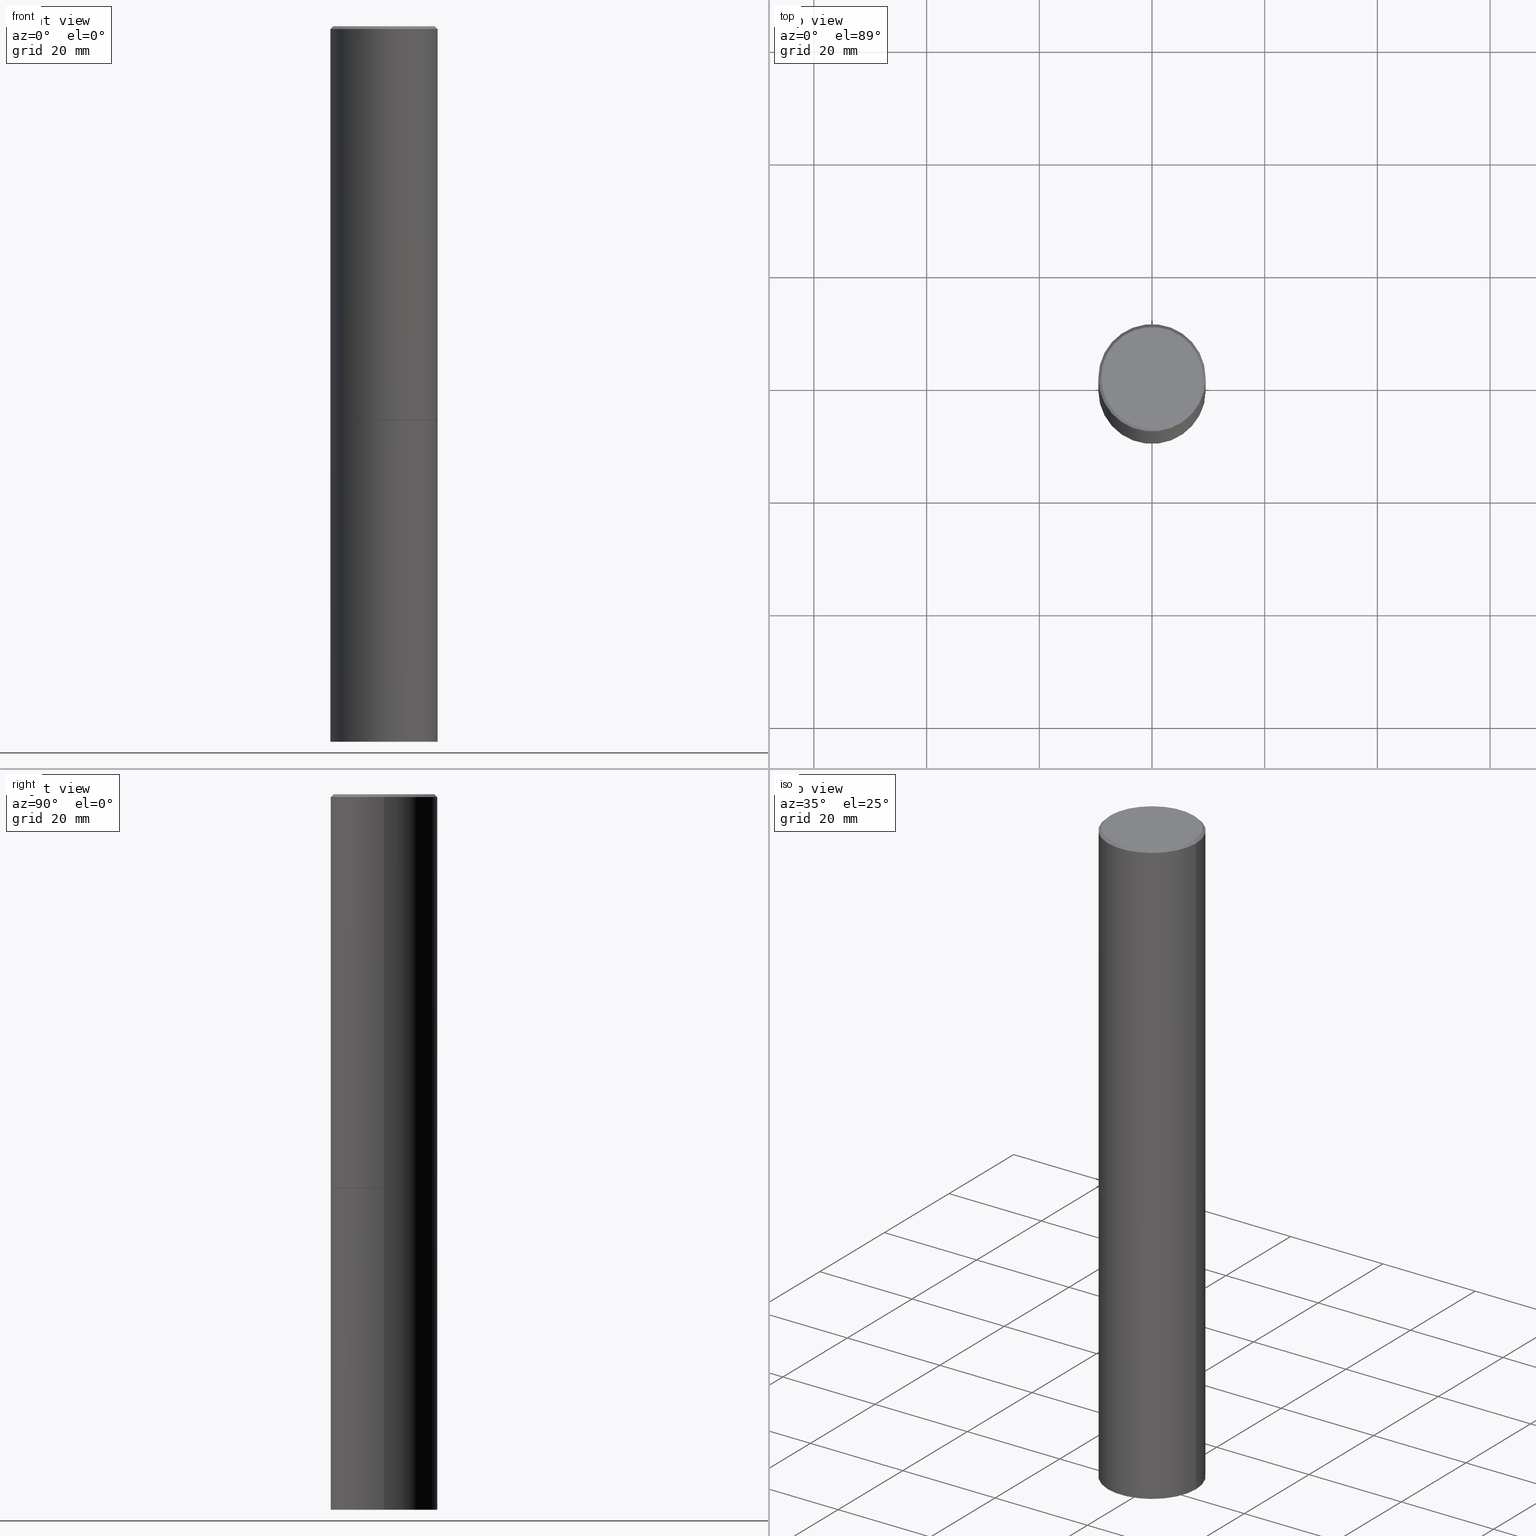
[diagram: canonical four-view strip — front | top / right | iso, engineering-drawing reading convention]
A machine part, canonical four-view strip (front | top / right | iso — engineering-drawing reading convention). The complete STEP part file that produces these views, byte-faithful:
ISO-10303-21;
HEADER;
FILE_DESCRIPTION (( 'STEP AP203' ),
    '1' );
FILE_NAME ('70486.STEP',
    '2024-02-29T03:16:18',
    ( '' ),
    ( '' ),
    'SwSTEP 2.0',
    'SolidWorks 2023',
    '' );
FILE_SCHEMA (( 'CONFIG_CONTROL_DESIGN' ));
ENDSEC;

DATA;
#1 = DATE_AND_TIME ( #61, #44 ) ;
#2 = CARTESIAN_POINT ( 'NONE',  ( 0.000000000000000000, 0.000000000000000000, 0.000000000000000000 ) ) ;
#3 = CARTESIAN_POINT ( 'NONE',  ( -0.3739999999999999991, -6.944143850075875170E-15, -2.750000000000000000 ) ) ;
#4 = DIRECTION ( 'NONE',  ( 1.000000000000000000, -6.982962677686266711E-15, 0.000000000000000000 ) ) ;
#5 = ORIENTED_EDGE ( 'NONE', *, *, #188, .T. ) ;
#6 =( LENGTH_UNIT ( ) NAMED_UNIT ( * ) SI_UNIT ( $, .METRE. ) );
#7 = PRODUCT ( '70486', '70486', '', ( #343 ) ) ;
#8 = ORIENTED_EDGE ( 'NONE', *, *, #188, .F. ) ;
#9 = DIRECTION ( 'NONE',  ( -2.445468806185136597E-29, 3.491481338843145583E-15, 1.000000000000000000 ) ) ;
#10 = DIRECTION ( 'NONE',  ( -2.445468806185136597E-29, 3.491481338843145583E-15, 1.000000000000000000 ) ) ;
#11 = CIRCLE ( 'NONE', #336, 0.3750000000000000555 ) ;
#12 = CYLINDRICAL_SURFACE ( 'NONE', #199, 0.3749999999999998335 ) ;
#13 = CIRCLE ( 'NONE', #210, 0.3750000000000000555 ) ;
#14 = EDGE_CURVE ( 'NONE', #320, #322, #11, .T. ) ;
#15 = ORIENTED_EDGE ( 'NONE', *, *, #326, .F. ) ;
#16 = CARTESIAN_POINT ( 'NONE',  ( 2.618611004132417464E-15, 0.3749999999999903966, -2.750000000000000888 ) ) ;
#17 = ADVANCED_FACE ( 'NONE', ( #145 ), #259, .F. ) ;
#18 = DIRECTION ( 'NONE',  ( -2.445468806185136597E-29, 3.491481338843145583E-15, 1.000000000000000000 ) ) ;
#19 = VECTOR ( 'NONE', #133, 39.37007874015748143 ) ;
#20 = VERTEX_POINT ( 'NONE', #244 ) ;
#21 = APPROVAL_DATE_TIME ( #83, #167 ) ;
#22 = CALENDAR_DATE ( 2024, 28, 2 ) ;
#23 = AXIS2_PLACEMENT_3D ( 'NONE', #137, #112, #222 ) ;
#24 = FACE_OUTER_BOUND ( 'NONE', #92, .T. ) ;
#25 = APPLICATION_PROTOCOL_DEFINITION ( 'international standard', 'config_control_design', 1994, #79 ) ;
#26 = CARTESIAN_POINT ( 'NONE',  ( 0.3749999999999996114, -2.642516375941185268E-15, -0.02000000000000010103 ) ) ;
#27 = CC_DESIGN_PERSON_AND_ORGANIZATION_ASSIGNMENT ( #220, #307, ( #7 ) ) ;
#28 = ORIENTED_EDGE ( 'NONE', *, *, #326, .T. ) ;
#29 = LINE ( 'NONE', #3, #230 ) ;
#30 = PERSON_AND_ORGANIZATION ( #68, #351 ) ;
#31 = CYLINDRICAL_SURFACE ( 'NONE', #319, 0.3750000000000000555 ) ;
#32 = LOCAL_TIME ( 22, 16, 18.00000000000000000, #228 ) ;
#33 = ORIENTED_EDGE ( 'NONE', *, *, #119, .T. ) ;
#34 = CARTESIAN_POINT ( 'NONE',  ( 0.000000000000000000, 0.000000000000000000, 0.000000000000000000 ) ) ;
#35 = EDGE_LOOP ( 'NONE', ( #168, #281 ) ) ;
#36 = PRODUCT_DEFINITION ( 'UNKNOWN', '', #242, #49 ) ;
#37 = DIRECTION ( 'NONE',  ( 1.000000000000000000, -6.982962677686265922E-15, 4.876176775795935793E-29 ) ) ;
#38 = COORDINATED_UNIVERSAL_TIME_OFFSET ( 5, 0, .BEHIND. ) ;
#39 = EDGE_CURVE ( 'NONE', #305, #357, #269, .T. ) ;
#40 = CONICAL_SURFACE ( 'NONE', #262, 0.3749999999999996114, 0.7853981633974453924 ) ;
#41 = ORIENTED_EDGE ( 'NONE', *, *, #255, .T. ) ;
#42 = ADVANCED_FACE ( 'NONE', ( #364 ), #206, .T. ) ;
#43 = EDGE_LOOP ( 'NONE', ( #291, #45 ) ) ;
#44 = LOCAL_TIME ( 22, 16, 18.00000000000000000, #38 ) ;
#45 = ORIENTED_EDGE ( 'NONE', *, *, #48, .F. ) ;
#46 = CALENDAR_DATE ( 2024, 28, 2 ) ;
#47 = PERSON_AND_ORGANIZATION_ROLE ( 'design_supplier' ) ;
#48 = EDGE_CURVE ( 'NONE', #113, #313, #276, .T. ) ;
#49 = DESIGN_CONTEXT ( 'detailed design', #79, 'design' ) ;
#50 = CARTESIAN_POINT ( 'NONE',  ( 0.3739999999999999991, -1.221320172327331386E-14, -2.750000000000000000 ) ) ;
#51 = AXIS2_PLACEMENT_3D ( 'NONE', #263, #10, #108 ) ;
#52 = ADVANCED_FACE ( 'NONE', ( #74 ), #248, .F. ) ;
#53 = ADVANCED_FACE ( 'NONE', ( #290 ), #169, .T. ) ;
#54 = FACE_OUTER_BOUND ( 'NONE', #75, .T. ) ;
#55 = CARTESIAN_POINT ( 'NONE',  ( 2.618611004132472290E-15, 0.3749999999999825695, -5.000000000000000888 ) ) ;
#56 = AXIS2_PLACEMENT_3D ( 'NONE', #308, #140, #62 ) ;
#57 = VERTEX_POINT ( 'NONE', #312 ) ;
#58 = DIRECTION ( 'NONE',  ( 1.000000000000000000, -6.982962677686265922E-15, 4.876176775795935793E-29 ) ) ;
#59 = DIRECTION ( 'NONE',  ( -2.445468806185136597E-29, 3.491481338843145583E-15, 1.000000000000000000 ) ) ;
#60 = ORIENTED_EDGE ( 'NONE', *, *, #184, .F. ) ;
#61 = CALENDAR_DATE ( 2024, 28, 2 ) ;
#62 = DIRECTION ( 'NONE',  ( -1.000000000000000000, 6.982962677686266711E-15, 0.000000000000000000 ) ) ;
#63 = DIRECTION ( 'NONE',  ( 2.445468806185136597E-29, -3.491481338843145583E-15, -1.000000000000000000 ) ) ;
#64 = ORIENTED_EDGE ( 'NONE', *, *, #191, .T. ) ;
#65 = CARTESIAN_POINT ( 'NONE',  ( 0.000000000000000000, 0.000000000000000000, 0.000000000000000000 ) ) ;
#66 = EDGE_LOOP ( 'NONE', ( #5, #28, #99, #310 ) ) ;
#67 = DIRECTION ( 'NONE',  ( -2.445468806185136597E-29, 3.491481338843145583E-15, 1.000000000000000000 ) ) ;
#68 = PERSON ( 'UNSPECIFIED', 'UNSPECIFIED', 'UNSPECIFIED', ('UNSPECIFIED'), ('UNSPECIFIED'), ('UNSPECIFIED') ) ;
#69 = EDGE_CURVE ( 'NONE', #313, #305, #200, .T. ) ;
#70 = DIRECTION ( 'NONE',  ( -1.000000000000000000, 6.982962677686265922E-15, -4.876176775795935793E-29 ) ) ;
#71 = DIRECTION ( 'NONE',  ( 1.000000000000000000, -6.982962677686265133E-15, 0.000000000000000000 ) ) ;
#72 = EDGE_LOOP ( 'NONE', ( #116, #64 ) ) ;
#73 = LOCAL_TIME ( 22, 16, 18.00000000000000000, #333 ) ;
#74 = FACE_OUTER_BOUND ( 'NONE', #43, .T. ) ;
#75 = EDGE_LOOP ( 'NONE', ( #166, #124, #198, #218 ) ) ;
#76 = ADVANCED_BREP_SHAPE_REPRESENTATION ( '70486', ( #296, #183, #136 ), #117 ) ;
#77 = DIRECTION ( 'NONE',  ( 1.000000000000000000, -6.982962677686266711E-15, 0.000000000000000000 ) ) ;
#78 = CARTESIAN_POINT ( 'NONE',  ( 0.3750000000000000555, -2.007601769834807990E-14, -5.000000000000000000 ) ) ;
#79 = APPLICATION_CONTEXT ( 'configuration controlled 3d designs of mechanical parts and assemblies' ) ;
#80 = CIRCLE ( 'NONE', #337, 0.3749999999999996114 ) ;
#81 = ORIENTED_EDGE ( 'NONE', *, *, #361, .T. ) ;
#82 = DIRECTION ( 'NONE',  ( 1.000000000000000000, -6.982962677686266711E-15, 0.000000000000000000 ) ) ;
#83 = DATE_AND_TIME ( #22, #287 ) ;
#84 = DIRECTION ( 'NONE',  ( -2.445468806185136597E-29, 3.491481338843145583E-15, 1.000000000000000000 ) ) ;
#85 = CARTESIAN_POINT ( 'NONE',  ( 6.725039217009124520E-29, -9.601573681818649859E-15, -2.750000000000000000 ) ) ;
#86 = CARTESIAN_POINT ( 'NONE',  ( -0.3750000000000000555, 2.664535259100376091E-15, -1.844600658845589598E-29 ) ) ;
#87 = CARTESIAN_POINT ( 'NONE',  ( 0.3549999999999996492, -2.538996582575037893E-15, 4.268512490117958041E-18 ) ) ;
#88 = DATE_TIME_ROLE ( 'creation_date' ) ;
#89 = EDGE_CURVE ( 'NONE', #357, #20, #359, .T. ) ;
#90 = CIRCLE ( 'NONE', #171, 0.3739999999999999991 ) ;
#91 = DIRECTION ( 'NONE',  ( -2.445468806185136597E-29, 3.491481338843145583E-15, 1.000000000000000000 ) ) ;
#92 = EDGE_LOOP ( 'NONE', ( #170, #202, #81, #258 ) ) ;
#93 = DIRECTION ( 'NONE',  ( -2.445468806185136597E-29, 3.491481338843145583E-15, 1.000000000000000000 ) ) ;
#94 = AXIS2_PLACEMENT_3D ( 'NONE', #34, #59, #162 ) ;
#95 = CARTESIAN_POINT ( 'NONE',  ( -0.3750000000000000555, -1.086495492891681496E-14, -2.750000000000000000 ) ) ;
#96 = VERTEX_POINT ( 'NONE', #87 ) ;
#97 = DIRECTION ( 'NONE',  ( -1.000000000000000000, 6.982962677686265922E-15, -4.876176775795935793E-29 ) ) ;
#98 = ORIENTED_EDGE ( 'NONE', *, *, #211, .F. ) ;
#99 = ORIENTED_EDGE ( 'NONE', *, *, #89, .F. ) ;
#100 = VECTOR ( 'NONE', #229, 39.37007874015748143 ) ;
#101 = ADVANCED_FACE ( 'NONE', ( #192 ), #297, .T. ) ;
#102 = APPROVAL_STATUS ( 'not_yet_approved' ) ;
#103 = APPROVAL_DATE_TIME ( #236, #331 ) ;
#104 = PRODUCT_RELATED_PRODUCT_CATEGORY ( 'detail', '', ( #7 ) ) ;
#105 =( NAMED_UNIT ( * ) SI_UNIT ( $, .STERADIAN. ) SOLID_ANGLE_UNIT ( ) );
#106 = APPROVAL_ROLE ( '' ) ;
#107 = DIRECTION ( 'NONE',  ( 1.000000000000000000, -6.982962677686265133E-15, 0.000000000000000000 ) ) ;
#108 = DIRECTION ( 'NONE',  ( 1.000000000000000000, -6.982962677686265922E-15, 4.876231632511992667E-29 ) ) ;
#109 = LINE ( 'NONE', #86, #100 ) ;
#110 = AXIS2_PLACEMENT_3D ( 'NONE', #147, #91, #174 ) ;
#111 = ADVANCED_FACE ( 'NONE', ( #115 ), #12, .T. ) ;
#112 = DIRECTION ( 'NONE',  ( -2.445468806185136597E-29, 3.491481338843145583E-15, 1.000000000000000000 ) ) ;
#113 = VERTEX_POINT ( 'NONE', #118 ) ;
#114 = ADVANCED_FACE ( 'NONE', ( #347 ), #358, .F. ) ;
#115 = FACE_OUTER_BOUND ( 'NONE', #179, .T. ) ;
#116 = ORIENTED_EDGE ( 'NONE', *, *, #176, .T. ) ;
#117 =( GEOMETRIC_REPRESENTATION_CONTEXT ( 3 ) GLOBAL_UNCERTAINTY_ASSIGNED_CONTEXT ( ( #178 ) ) GLOBAL_UNIT_ASSIGNED_CONTEXT ( ( #247, #138, #105 ) ) REPRESENTATION_CONTEXT ( 'NONE', 'WORKASPACE' ) );
#118 = CARTESIAN_POINT ( 'NONE',  ( -0.3739999999999999991, -6.938845395727654346E-15, -2.750000000000000000 ) ) ;
#119 = EDGE_CURVE ( 'NONE', #96, #357, #289, .T. ) ;
#120 = ORIENTED_EDGE ( 'NONE', *, *, #282, .F. ) ;
#121 = DIRECTION ( 'NONE',  ( 2.438088387897960049E-29, -3.491481338843145188E-15, -1.000000000000000000 ) ) ;
#122 = AXIS2_PLACEMENT_3D ( 'NONE', #272, #159, #356 ) ;
#123 = APPROVAL_PERSON_ORGANIZATION ( #157, #235, #354 ) ;
#124 = ORIENTED_EDGE ( 'NONE', *, *, #225, .T. ) ;
#125 = CARTESIAN_POINT ( 'NONE',  ( 0.3750000000000000555, -1.221669320461215845E-14, -2.749000000000000110 ) ) ;
#126 = PERSON_AND_ORGANIZATION_ROLE ( 'classification_officer' ) ;
#127 = CLOSED_SHELL ( 'NONE', ( #325, #323, #17, #355 ) ) ;
#128 = VECTOR ( 'NONE', #346, 39.37007874015748143 ) ;
#129 = DIRECTION ( 'NONE',  ( 1.000000000000000000, -6.982962677686265133E-15, 0.000000000000000000 ) ) ;
#130 = CC_DESIGN_SECURITY_CLASSIFICATION ( #226, ( #242 ) ) ;
#131 = PERSON_AND_ORGANIZATION ( #68, #351 ) ;
#132 = DIRECTION ( 'NONE',  ( -2.445468806185136597E-29, 3.491481338843145583E-15, 1.000000000000000000 ) ) ;
#133 = DIRECTION ( 'NONE',  ( -2.445468806185136877E-29, 3.491481338843145188E-15, 1.000000000000000000 ) ) ;
#134 = COORDINATED_UNIVERSAL_TIME_OFFSET ( 5, 0, .BEHIND. ) ;
#135 = LINE ( 'NONE', #251, #19 ) ;
#136 = AXIS2_PLACEMENT_3D ( 'NONE', #2, #366, #334 ) ;
#137 = CARTESIAN_POINT ( 'NONE',  ( 4.890937612370298557E-31, -6.982962677686327354E-17, -0.02000000000000010103 ) ) ;
#138 =( NAMED_UNIT ( * ) PLANE_ANGLE_UNIT ( ) SI_UNIT ( $, .RADIAN. ) );
#139 = ORIENTED_EDGE ( 'NONE', *, *, #89, .T. ) ;
#140 = DIRECTION ( 'NONE',  ( 2.445468806185136597E-29, -3.491481338843145583E-15, -1.000000000000000000 ) ) ;
#141 = CC_DESIGN_PERSON_AND_ORGANIZATION_ASSIGNMENT ( #30, #126, ( #226 ) ) ;
#142 = VECTOR ( 'NONE', #175, 39.37007874015748143 ) ;
#143 = DIRECTION ( 'NONE',  ( 1.000000000000000000, -6.982962677686265922E-15, 4.876176775795935793E-29 ) ) ;
#144 = EDGE_LOOP ( 'NONE', ( #98, #284, #227, #160 ) ) ;
#145 = FACE_OUTER_BOUND ( 'NONE', #72, .T. ) ;
#146 = DIRECTION ( 'NONE',  ( -2.445468806185136597E-29, 3.491481338843145583E-15, 1.000000000000000000 ) ) ;
#147 = CARTESIAN_POINT ( 'NONE',  ( -1.043851414335219820E-46, 1.490343170380447200E-32, 4.268512490100411279E-18 ) ) ;
#148 = APPROVAL_PERSON_ORGANIZATION ( #131, #331, #106 ) ;
#149 = DIRECTION ( 'NONE',  ( -2.445468806185136597E-29, 3.491481338843145583E-15, 1.000000000000000000 ) ) ;
#150 = ORIENTED_EDGE ( 'NONE', *, *, #14, .F. ) ;
#151 = VERTEX_POINT ( 'NONE', #341 ) ;
#152 = CARTESIAN_POINT ( 'NONE',  ( 2.478951750578621842E-15, 0.3549999999999996492, -1.237341619044265047E-15 ) ) ;
#153 = VECTOR ( 'NONE', #271, 39.37007874015748143 ) ;
#154 = DIMENSIONAL_EXPONENTS ( 1.000000000000000000, 0.000000000000000000, 0.000000000000000000, 0.000000000000000000, 0.000000000000000000, 0.000000000000000000, 0.000000000000000000 ) ;
#155 = PRODUCT_DEFINITION_SHAPE ( 'NONE', 'NONE',  #36 ) ;
#156 = ADVANCED_FACE ( 'NONE', ( #193 ), #40, .T. ) ;
#157 = PERSON_AND_ORGANIZATION ( #68, #351 ) ;
#158 = AXIS2_PLACEMENT_3D ( 'NONE', #152, #266, #97 ) ;
#159 = DIRECTION ( 'NONE',  ( -2.445468806185136597E-29, 3.491481338843145583E-15, 1.000000000000000000 ) ) ;
#160 = ORIENTED_EDGE ( 'NONE', *, *, #231, .F. ) ;
#161 = ADVANCED_FACE ( 'NONE', ( #240 ), #268, .T. ) ;
#162 = DIRECTION ( 'NONE',  ( 1.000000000000000000, -6.982962677686265922E-15, 4.876176775795935793E-29 ) ) ;
#163 = ORIENTED_EDGE ( 'NONE', *, *, #69, .F. ) ;
#164 = DIRECTION ( 'NONE',  ( 2.438088387897960049E-29, -3.491481338843145188E-15, -1.000000000000000000 ) ) ;
#165 = AXIS2_PLACEMENT_3D ( 'NONE', #335, #344, #194 ) ;
#166 = ORIENTED_EDGE ( 'NONE', *, *, #14, .T. ) ;
#167 = APPROVAL ( #102, 'UNSPECIFIED' ) ;
#168 = ORIENTED_EDGE ( 'NONE', *, *, #282, .T. ) ;
#169 = CYLINDRICAL_SURFACE ( 'NONE', #267, 0.3749999999999998335 ) ;
#170 = ORIENTED_EDGE ( 'NONE', *, *, #225, .F. ) ;
#171 = AXIS2_PLACEMENT_3D ( 'NONE', #260, #18, #129 ) ;
#172 = APPROVAL_PERSON_ORGANIZATION ( #300, #167, #215 ) ;
#173 = APPLICATION_CONTEXT ( 'configuration controlled 3d designs of mechanical parts and assemblies' ) ;
#174 = DIRECTION ( 'NONE',  ( 1.000000000000000000, -6.982962677686265922E-15, 4.876231632511992667E-29 ) ) ;
#175 = DIRECTION ( 'NONE',  ( 0.7071067811866199593, -2.468850131083015945E-15, 0.7071067811864750752 ) ) ;
#176 = EDGE_CURVE ( 'NONE', #303, #278, #13, .T. ) ;
#177 = AXIS2_PLACEMENT_3D ( 'NONE', #16, #121, #70 ) ;
#178 = UNCERTAINTY_MEASURE_WITH_UNIT (LENGTH_MEASURE( 1.000000000000000082E-05 ), #247, 'distance_accuracy_value', 'NONE');
#179 = EDGE_LOOP ( 'NONE', ( #15, #294, #201, #205 ) ) ;
#180 = CC_DESIGN_PERSON_AND_ORGANIZATION_ASSIGNMENT ( #213, #47, ( #242 ) ) ;
#181 = CARTESIAN_POINT ( 'NONE',  ( 0.3750000000000000555, -1.222018468595100145E-14, -2.750000000000000000 ) ) ;
#182 = CIRCLE ( 'NONE', #195, 0.3750000000000000555 ) ;
#183 = MANIFOLD_SOLID_BREP ( 'Body-Move/Copy2[2]', #328 ) ;
#184 = EDGE_CURVE ( 'NONE', #322, #320, #207, .T. ) ;
#185 = CIRCLE ( 'NONE', #237, 0.3750000000000000555 ) ;
#186 = ORIENTED_EDGE ( 'NONE', *, *, #255, .F. ) ;
#187 = CARTESIAN_POINT ( 'NONE',  ( -0.3750000000000000555, -1.086495492891681496E-14, -5.000000000000000000 ) ) ;
#188 = EDGE_CURVE ( 'NONE', #305, #57, #182, .T. ) ;
#189 = LINE ( 'NONE', #332, #153 ) ;
#190 = APPLICATION_PROTOCOL_DEFINITION ( 'international standard', 'config_control_design', 1994, #173 ) ;
#191 = EDGE_CURVE ( 'NONE', #278, #303, #286, .T. ) ;
#192 = FACE_OUTER_BOUND ( 'NONE', #353, .T. ) ;
#193 = FACE_OUTER_BOUND ( 'NONE', #232, .T. ) ;
#194 = DIRECTION ( 'NONE',  ( 1.000000000000000000, -6.982962677686266711E-15, 0.000000000000000000 ) ) ;
#195 = AXIS2_PLACEMENT_3D ( 'NONE', #311, #9, #274 ) ;
#196 = SECURITY_CLASSIFICATION_LEVEL ( 'unclassified' ) ;
#197 = CC_DESIGN_DATE_AND_TIME_ASSIGNMENT ( #299, #314, ( #226 ) ) ;
#198 = ORIENTED_EDGE ( 'NONE', *, *, #176, .F. ) ;
#199 = AXIS2_PLACEMENT_3D ( 'NONE', #65, #283, #37 ) ;
#200 = LINE ( 'NONE', #256, #142 ) ;
#201 = ORIENTED_EDGE ( 'NONE', *, *, #39, .T. ) ;
#202 = ORIENTED_EDGE ( 'NONE', *, *, #184, .T. ) ;
#203 = PERSON_AND_ORGANIZATION_ROLE ( 'creator' ) ;
#204 = APPROVAL_STATUS ( 'not_yet_approved' ) ;
#205 = ORIENTED_EDGE ( 'NONE', *, *, #298, .F. ) ;
#206 = CONICAL_SURFACE ( 'NONE', #257, 0.3739999999999999991, 0.7853981633975507526 ) ;
#207 = CIRCLE ( 'NONE', #165, 0.3750000000000000555 ) ;
#208 = SHAPE_DEFINITION_REPRESENTATION ( #155, #76 ) ;
#209 = CALENDAR_DATE ( 2024, 28, 2 ) ;
#210 = AXIS2_PLACEMENT_3D ( 'NONE', #339, #279, #250 ) ;
#211 = EDGE_CURVE ( 'NONE', #113, #57, #29, .T. ) ;
#212 = PERSON_AND_ORGANIZATION_ROLE ( 'creator' ) ;
#213 = PERSON_AND_ORGANIZATION ( #68, #351 ) ;
#214 = CARTESIAN_POINT ( 'NONE',  ( 0.000000000000000000, 0.000000000000000000, 0.000000000000000000 ) ) ;
#215 = APPROVAL_ROLE ( '' ) ;
#216 = CC_DESIGN_PERSON_AND_ORGANIZATION_ASSIGNMENT ( #327, #212, ( #36 ) ) ;
#217 = AXIS2_PLACEMENT_3D ( 'NONE', #253, #132, #107 ) ;
#218 = ORIENTED_EDGE ( 'NONE', *, *, #361, .F. ) ;
#219 = PLANE ( 'NONE',  #293 ) ;
#220 = PERSON_AND_ORGANIZATION ( #68, #351 ) ;
#221 = DIRECTION ( 'NONE',  ( -2.445468806185136597E-29, 3.491481338843145583E-15, 1.000000000000000000 ) ) ;
#222 = DIRECTION ( 'NONE',  ( 1.000000000000000000, -6.982962677686266711E-15, 0.000000000000000000 ) ) ;
#223 = DIRECTION ( 'NONE',  ( 0.7071067811865454633, -7.319954787623248157E-15, -0.7071067811865495711 ) ) ;
#224 = EDGE_LOOP ( 'NONE', ( #150, #60 ) ) ;
#225 = EDGE_CURVE ( 'NONE', #322, #278, #109, .T. ) ;
#226 = SECURITY_CLASSIFICATION ( '', '', #196 ) ;
#227 = ORIENTED_EDGE ( 'NONE', *, *, #69, .T. ) ;
#228 = COORDINATED_UNIVERSAL_TIME_OFFSET ( 5, 0, .BEHIND. ) ;
#229 = DIRECTION ( 'NONE',  ( -2.445468806185136877E-29, 3.491481338843145188E-15, 1.000000000000000000 ) ) ;
#230 = VECTOR ( 'NONE', #340, 39.37007874015748143 ) ;
#231 = EDGE_CURVE ( 'NONE', #57, #305, #185, .T. ) ;
#232 = EDGE_LOOP ( 'NONE', ( #249, #120, #41, #264 ) ) ;
#233 = CARTESIAN_POINT ( 'NONE',  ( 6.722593748202941159E-29, -9.598082200479808430E-15, -2.749000000000000110 ) ) ;
#234 = CARTESIAN_POINT ( 'NONE',  ( 0.3749999999999996114, -2.642516375941185268E-15, -0.02000000000000010103 ) ) ;
#235 = APPROVAL ( #204, 'UNSPECIFIED' ) ;
#236 = DATE_AND_TIME ( #46, #32 ) ;
#237 = AXIS2_PLACEMENT_3D ( 'NONE', #233, #348, #4 ) ;
#238 = CARTESIAN_POINT ( 'NONE',  ( 4.890937612370298557E-31, -6.982962677686327354E-17, -0.02000000000000010103 ) ) ;
#239 = APPROVAL_DATE_TIME ( #1, #235 ) ;
#240 = FACE_OUTER_BOUND ( 'NONE', #144, .T. ) ;
#241 = DIRECTION ( 'NONE',  ( 1.000000000000000000, -6.982962677686265922E-15, 4.876176775795935793E-29 ) ) ;
#242 = PRODUCT_DEFINITION_FORMATION_WITH_SPECIFIED_SOURCE ( 'ANY', '', #7, .NOT_KNOWN. ) ;
#243 = LOCAL_TIME ( 22, 16, 18.00000000000000000, #360 ) ;
#244 = CARTESIAN_POINT ( 'NONE',  ( -0.3749999999999996114, 2.548781377355483957E-15, -0.02000000000000010103 ) ) ;
#245 = LENGTH_MEASURE_WITH_UNIT ( LENGTH_MEASURE( 0.02539999999999999897 ), #6 );
#246 = APPROVAL_STATUS ( 'not_yet_approved' ) ;
#247 =( CONVERSION_BASED_UNIT ( 'INCH', #245 ) LENGTH_UNIT ( ) NAMED_UNIT ( #154 ) );
#248 = PLANE ( 'NONE',  #270 ) ;
#249 = ORIENTED_EDGE ( 'NONE', *, *, #119, .F. ) ;
#250 = DIRECTION ( 'NONE',  ( 1.000000000000000000, -6.982962677686266711E-15, 0.000000000000000000 ) ) ;
#251 = CARTESIAN_POINT ( 'NONE',  ( 0.3750000000000000555, -2.618611004132350016E-15, 1.828566290923476203E-29 ) ) ;
#252 = DATE_AND_TIME ( #292, #243 ) ;
#253 = CARTESIAN_POINT ( 'NONE',  ( 6.725039217009124520E-29, -9.601573681818649859E-15, -2.750000000000000000 ) ) ;
#254 = ORIENTED_EDGE ( 'NONE', *, *, #211, .T. ) ;
#255 = EDGE_CURVE ( 'NONE', #151, #20, #317, .T. ) ;
#256 = CARTESIAN_POINT ( 'NONE',  ( 0.3739999999999999991, -1.221320172327331386E-14, -2.750000000000000000 ) ) ;
#257 = AXIS2_PLACEMENT_3D ( 'NONE', #338, #146, #71 ) ;
#258 = ORIENTED_EDGE ( 'NONE', *, *, #191, .F. ) ;
#259 = PLANE ( 'NONE',  #177 ) ;
#260 = CARTESIAN_POINT ( 'NONE',  ( 6.725039217009124520E-29, -9.601573681818649859E-15, -2.750000000000000000 ) ) ;
#261 = VECTOR ( 'NONE', #362, 39.37007874015748143 ) ;
#262 = AXIS2_PLACEMENT_3D ( 'NONE', #309, #63, #280 ) ;
#263 = CARTESIAN_POINT ( 'NONE',  ( -1.043851414335219820E-46, 1.490343170380447200E-32, 4.268512490100411279E-18 ) ) ;
#264 = ORIENTED_EDGE ( 'NONE', *, *, #298, .T. ) ;
#265 = CC_DESIGN_PERSON_AND_ORGANIZATION_ASSIGNMENT ( #365, #203, ( #242 ) ) ;
#266 = DIRECTION ( 'NONE',  ( 2.438088387897960049E-29, -3.491481338843145188E-15, -1.000000000000000000 ) ) ;
#267 = AXIS2_PLACEMENT_3D ( 'NONE', #349, #93, #143 ) ;
#268 = CONICAL_SURFACE ( 'NONE', #217, 0.3739999999999999991, 0.7853981633975507526 ) ;
#269 = LINE ( 'NONE', #330, #261 ) ;
#270 = AXIS2_PLACEMENT_3D ( 'NONE', #275, #295, #241 ) ;
#271 = DIRECTION ( 'NONE',  ( -2.445468806185136877E-29, 3.491481338843145188E-15, 1.000000000000000000 ) ) ;
#272 = CARTESIAN_POINT ( 'NONE',  ( 6.725039217009124520E-29, -9.601573681818649859E-15, -2.750000000000000000 ) ) ;
#273 = FACE_OUTER_BOUND ( 'NONE', #224, .T. ) ;
#274 = DIRECTION ( 'NONE',  ( 1.000000000000000000, -6.982962677686266711E-15, 0.000000000000000000 ) ) ;
#275 = CARTESIAN_POINT ( 'NONE',  ( 6.725039217009124520E-29, -9.601573681818649859E-15, -2.750000000000000000 ) ) ;
#276 = CIRCLE ( 'NONE', #122, 0.3739999999999999991 ) ;
#277 = CC_DESIGN_APPROVAL ( #331, ( #36 ) ) ;
#278 = VERTEX_POINT ( 'NONE', #95 ) ;
#279 = DIRECTION ( 'NONE',  ( -2.445468806185136597E-29, 3.491481338843145583E-15, 1.000000000000000000 ) ) ;
#280 = DIRECTION ( 'NONE',  ( -1.000000000000000000, 6.982962677686266711E-15, 0.000000000000000000 ) ) ;
#281 = ORIENTED_EDGE ( 'NONE', *, *, #321, .T. ) ;
#282 = EDGE_CURVE ( 'NONE', #151, #96, #329, .T. ) ;
#283 = DIRECTION ( 'NONE',  ( -2.445468806185136597E-29, 3.491481338843145583E-15, 1.000000000000000000 ) ) ;
#284 = ORIENTED_EDGE ( 'NONE', *, *, #48, .T. ) ;
#285 = EDGE_CURVE ( 'NONE', #313, #113, #90, .T. ) ;
#286 = CIRCLE ( 'NONE', #363, 0.3750000000000000555 ) ;
#287 = LOCAL_TIME ( 22, 16, 18.00000000000000000, #134 ) ;
#288 = DIRECTION ( 'NONE',  ( 1.000000000000000000, -6.982962677686266711E-15, 0.000000000000000000 ) ) ;
#289 = LINE ( 'NONE', #234, #345 ) ;
#290 = FACE_OUTER_BOUND ( 'NONE', #66, .T. ) ;
#291 = ORIENTED_EDGE ( 'NONE', *, *, #285, .F. ) ;
#292 = CALENDAR_DATE ( 2024, 28, 2 ) ;
#293 = AXIS2_PLACEMENT_3D ( 'NONE', #55, #164, #304 ) ;
#294 = ORIENTED_EDGE ( 'NONE', *, *, #231, .T. ) ;
#295 = DIRECTION ( 'NONE',  ( -2.438088387897960049E-29, 3.491481338843145188E-15, 1.000000000000000000 ) ) ;
#296 = MANIFOLD_SOLID_BREP ( 'Body-Move/Copy2[1]', #127 ) ;
#297 = CONICAL_SURFACE ( 'NONE', #56, 0.3749999999999996114, 0.7853981633974453924 ) ;
#298 = EDGE_CURVE ( 'NONE', #20, #357, #80, .T. ) ;
#299 = DATE_AND_TIME ( #209, #73 ) ;
#300 = PERSON_AND_ORGANIZATION ( #68, #351 ) ;
#301 = CC_DESIGN_DATE_AND_TIME_ASSIGNMENT ( #252, #88, ( #36 ) ) ;
#302 = CIRCLE ( 'NONE', #51, 0.3549999999999996492 ) ;
#303 = VERTEX_POINT ( 'NONE', #181 ) ;
#304 = DIRECTION ( 'NONE',  ( -1.000000000000000000, 6.982962677686265922E-15, -4.876176775795935793E-29 ) ) ;
#305 = VERTEX_POINT ( 'NONE', #125 ) ;
#306 = CYLINDRICAL_SURFACE ( 'NONE', #94, 0.3750000000000000555 ) ;
#307 = PERSON_AND_ORGANIZATION_ROLE ( 'design_owner' ) ;
#308 = CARTESIAN_POINT ( 'NONE',  ( 4.890937612370298557E-31, -6.982962677686327354E-17, -0.02000000000000010103 ) ) ;
#309 = CARTESIAN_POINT ( 'NONE',  ( 4.890937612370298557E-31, -6.982962677686327354E-17, -0.02000000000000010103 ) ) ;
#310 = ORIENTED_EDGE ( 'NONE', *, *, #39, .F. ) ;
#311 = CARTESIAN_POINT ( 'NONE',  ( 6.722593748202941159E-29, -9.598082200479808430E-15, -2.749000000000000110 ) ) ;
#312 = CARTESIAN_POINT ( 'NONE',  ( -0.3749999999999999445, -2.169420654527958195E-15, -2.749000000000000110 ) ) ;
#313 = VERTEX_POINT ( 'NONE', #50 ) ;
#314 = DATE_TIME_ROLE ( 'classification_date' ) ;
#315 = CARTESIAN_POINT ( 'NONE',  ( -0.3749999999999996114, 2.548781377355483957E-15, -0.02000000000000010103 ) ) ;
#316 = ORIENTED_EDGE ( 'NONE', *, *, #285, .T. ) ;
#317 = LINE ( 'NONE', #315, #128 ) ;
#318 = CARTESIAN_POINT ( 'NONE',  ( 1.222734403092568523E-28, -1.745740669421572989E-14, -5.000000000000000000 ) ) ;
#319 = AXIS2_PLACEMENT_3D ( 'NONE', #214, #84, #58 ) ;
#320 = VERTEX_POINT ( 'NONE', #78 ) ;
#321 = EDGE_CURVE ( 'NONE', #96, #151, #302, .T. ) ;
#322 = VERTEX_POINT ( 'NONE', #187 ) ;
#323 = ADVANCED_FACE ( 'NONE', ( #273 ), #219, .T. ) ;
#324 = CC_DESIGN_APPROVAL ( #235, ( #242 ) ) ;
#325 = ADVANCED_FACE ( 'NONE', ( #54 ), #31, .T. ) ;
#326 = EDGE_CURVE ( 'NONE', #57, #20, #189, .T. ) ;
#327 = PERSON_AND_ORGANIZATION ( #68, #351 ) ;
#328 = CLOSED_SHELL ( 'NONE', ( #42, #53, #101, #156, #111, #161, #52, #114 ) ) ;
#329 = CIRCLE ( 'NONE', #110, 0.3549999999999996492 ) ;
#330 = CARTESIAN_POINT ( 'NONE',  ( 0.3749999999999998335, -2.618611004132348439E-15, 1.828566290923475082E-29 ) ) ;
#331 = APPROVAL ( #246, 'UNSPECIFIED' ) ;
#332 = CARTESIAN_POINT ( 'NONE',  ( -0.3749999999999998335, 2.664535259100374514E-15, -1.844600658845588757E-29 ) ) ;
#333 = COORDINATED_UNIVERSAL_TIME_OFFSET ( 5, 0, .BEHIND. ) ;
#334 = DIRECTION ( 'NONE',  ( 1.000000000000000000, 0.000000000000000000, 0.000000000000000000 ) ) ;
#335 = CARTESIAN_POINT ( 'NONE',  ( 1.222734403092568523E-28, -1.745740669421572989E-14, -5.000000000000000000 ) ) ;
#336 = AXIS2_PLACEMENT_3D ( 'NONE', #318, #67, #288 ) ;
#337 = AXIS2_PLACEMENT_3D ( 'NONE', #238, #149, #77 ) ;
#338 = CARTESIAN_POINT ( 'NONE',  ( 6.725039217009124520E-29, -9.601573681818649859E-15, -2.750000000000000000 ) ) ;
#339 = CARTESIAN_POINT ( 'NONE',  ( 6.725039217009124520E-29, -9.601573681818649859E-15, -2.750000000000000000 ) ) ;
#340 = DIRECTION ( 'NONE',  ( -0.7071067811866199593, 7.493145998870616062E-15, 0.7071067811864750752 ) ) ;
#341 = CARTESIAN_POINT ( 'NONE',  ( -0.3549999999999996492, 2.513866563967052703E-15, 4.268512490082953109E-18 ) ) ;
#342 = EDGE_LOOP ( 'NONE', ( #316, #254, #8, #163 ) ) ;
#343 = MECHANICAL_CONTEXT ( 'NONE', #173, 'mechanical' ) ;
#344 = DIRECTION ( 'NONE',  ( -2.445468806185136597E-29, 3.491481338843145583E-15, 1.000000000000000000 ) ) ;
#345 = VECTOR ( 'NONE', #223, 39.37007874015748143 ) ;
#346 = DIRECTION ( 'NONE',  ( -0.7071067811865454633, 2.468850131082235367E-15, -0.7071067811865495711 ) ) ;
#347 = FACE_OUTER_BOUND ( 'NONE', #35, .T. ) ;
#348 = DIRECTION ( 'NONE',  ( -2.445468806185136597E-29, 3.491481338843145583E-15, 1.000000000000000000 ) ) ;
#349 = CARTESIAN_POINT ( 'NONE',  ( 0.000000000000000000, 0.000000000000000000, 0.000000000000000000 ) ) ;
#350 = ORIENTED_EDGE ( 'NONE', *, *, #321, .F. ) ;
#351 = ORGANIZATION ( 'UNSPECIFIED', 'UNSPECIFIED', '' ) ;
#352 = CC_DESIGN_APPROVAL ( #167, ( #226 ) ) ;
#353 = EDGE_LOOP ( 'NONE', ( #350, #33, #139, #186 ) ) ;
#354 = APPROVAL_ROLE ( '' ) ;
#355 = ADVANCED_FACE ( 'NONE', ( #24 ), #306, .T. ) ;
#356 = DIRECTION ( 'NONE',  ( 1.000000000000000000, -6.982962677686265133E-15, 0.000000000000000000 ) ) ;
#357 = VERTEX_POINT ( 'NONE', #26 ) ;
#358 = PLANE ( 'NONE',  #158 ) ;
#359 = CIRCLE ( 'NONE', #23, 0.3749999999999996114 ) ;
#360 = COORDINATED_UNIVERSAL_TIME_OFFSET ( 5, 0, .BEHIND. ) ;
#361 = EDGE_CURVE ( 'NONE', #320, #303, #135, .T. ) ;
#362 = DIRECTION ( 'NONE',  ( -2.445468806185136877E-29, 3.491481338843145188E-15, 1.000000000000000000 ) ) ;
#363 = AXIS2_PLACEMENT_3D ( 'NONE', #85, #221, #82 ) ;
#364 = FACE_OUTER_BOUND ( 'NONE', #342, .T. ) ;
#365 = PERSON_AND_ORGANIZATION ( #68, #351 ) ;
#366 = DIRECTION ( 'NONE',  ( 0.000000000000000000, 0.000000000000000000, 1.000000000000000000 ) ) ;
ENDSEC;
END-ISO-10303-21;
